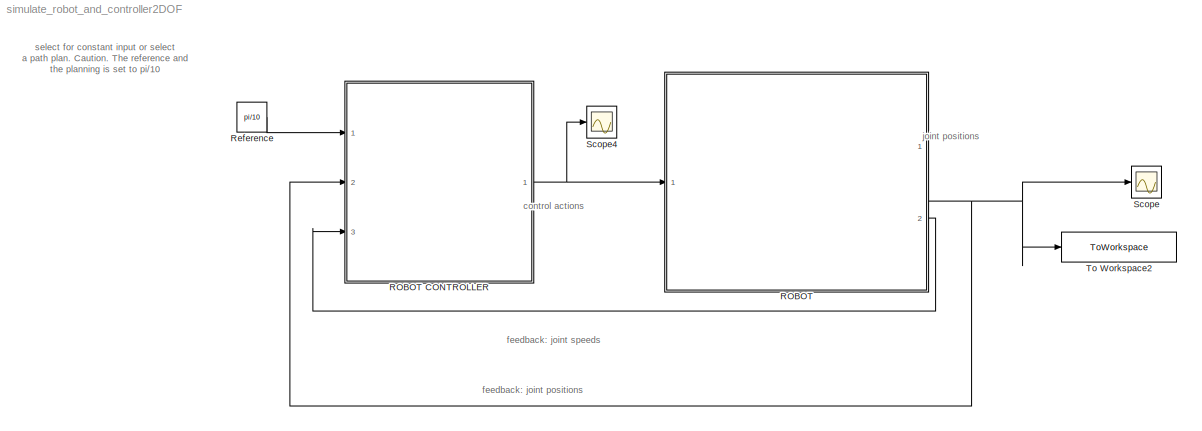
MODEL simulate_robot_and_controller2DOF
KIND model
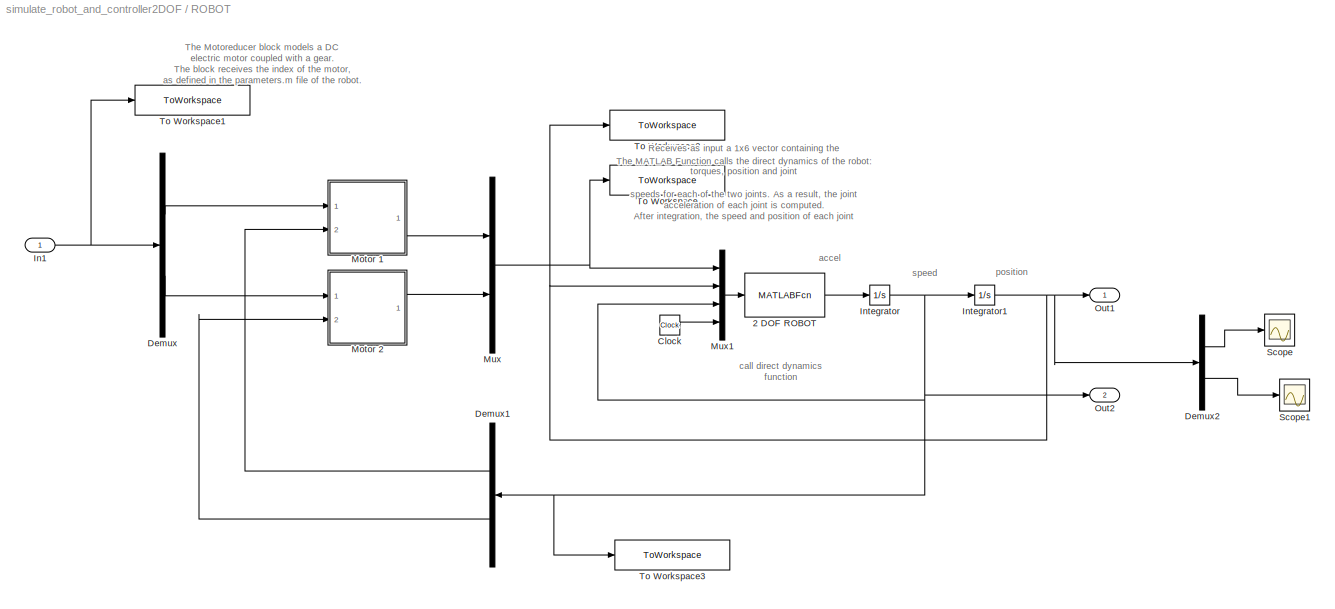
BLOCK [SubSystem] ROBOT
  Ports = [1, 2]
  RequestExecContextInheritance = off
  SID = 1
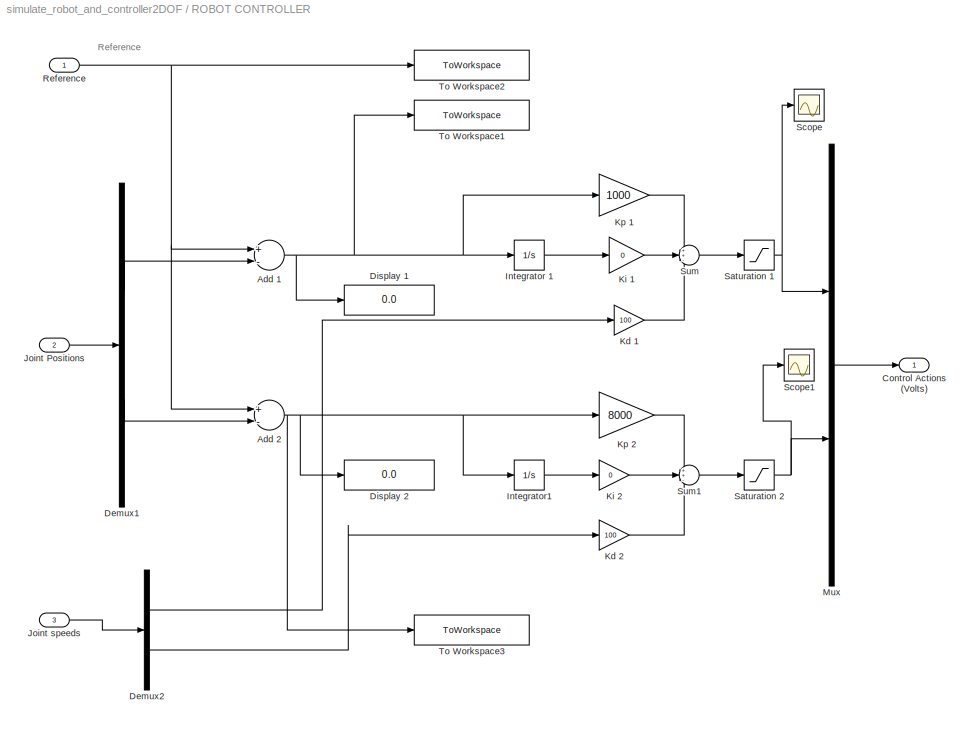
BLOCK [SubSystem] ROBOT CONTROLLER
  Description = ROBOT CONTROLLER
  Ports = [3, 1]
  RequestExecContextInheritance = off
  SID = 197
BLOCK [Sum] ROBOT CONTROLLER/Add 1
  InputSameDT = off
  Inputs = +-
  OutDataTypeStr = Inherit: Inherit via internal rule
  Ports = [2, 1]
  SID = 199
  SaturateOnIntegerOverflow = off
BLOCK [Sum] ROBOT CONTROLLER/Add 2
  InputSameDT = off
  Inputs = +-
  OutDataTypeStr = Inherit: Inherit via internal rule
  Ports = [2, 1]
  SID = 200
  SaturateOnIntegerOverflow = off
BLOCK [Outport] ROBOT CONTROLLER/Control Actions (Volts)
  IconDisplay = Port number
  SID = 210
BLOCK [Demux] ROBOT CONTROLLER/Demux1
  DisplayOption = bar
  Outputs = 2
  Ports = [1, 2]
  SID = 201
BLOCK [Demux] ROBOT CONTROLLER/Demux2
  DisplayOption = bar
  Outputs = 2
  Ports = [1, 2]
  SID = 399
BLOCK [Display] ROBOT CONTROLLER/Display 1
  Decimation = 1
  Ports = [1]
  SID = 317
BLOCK [Display] ROBOT CONTROLLER/Display 2
  Decimation = 1
  Ports = [1]
  SID = 318
BLOCK [Integrator] ROBOT CONTROLLER/Integrator 1
  Ports = [1, 1]
  SID = 292
BLOCK [Integrator] ROBOT CONTROLLER/Integrator1
  Ports = [1, 1]
  SID = 301
BLOCK [Inport] ROBOT CONTROLLER/Joint Positions
  IconDisplay = Port number
  Port = 2
  SID = 304
BLOCK [Inport] ROBOT CONTROLLER/Joint speeds
  IconDisplay = Port number
  Port = 3
  SID = 398
BLOCK [Gain] ROBOT CONTROLLER/Kd 1
  Gain = 100
  OutDataTypeStr = Inherit: Inherit via internal rule
  ParamDataTypeStr = Inherit: Inherit via internal rule
  SID = 296
  SaturateOnIntegerOverflow = off
BLOCK [Gain] ROBOT CONTROLLER/Kd 2
  Gain = 100
  OutDataTypeStr = Inherit: Inherit via internal rule
  ParamDataTypeStr = Inherit: Inherit via internal rule
  SID = 300
  SaturateOnIntegerOverflow = off
BLOCK [Gain] ROBOT CONTROLLER/Ki 1
  Gain = 0
  OutDataTypeStr = Inherit: Inherit via internal rule
  ParamDataTypeStr = Inherit: Inherit via internal rule
  SID = 295
  SaturateOnIntegerOverflow = off
BLOCK [Gain] ROBOT CONTROLLER/Ki 2
  Gain = 0
  OutDataTypeStr = Inherit: Inherit via internal rule
  ParamDataTypeStr = Inherit: Inherit via internal rule
  SID = 299
  SaturateOnIntegerOverflow = off
BLOCK [Gain] ROBOT CONTROLLER/Kp 1
  Gain = 1000
  OutDataTypeStr = Inherit: Inherit via internal rule
  ParamDataTypeStr = Inherit: Inherit via internal rule
  SID = 294
  SaturateOnIntegerOverflow = off
BLOCK [Gain] ROBOT CONTROLLER/Kp 2
  Gain = 8000
  OutDataTypeStr = Inherit: Inherit via internal rule
  ParamDataTypeStr = Inherit: Inherit via internal rule
  SID = 298
  SaturateOnIntegerOverflow = off
BLOCK [Mux] ROBOT CONTROLLER/Mux
  DisplayOption = bar
  Inputs = 2
  Ports = [2, 1]
  SID = 202
BLOCK [Inport] ROBOT CONTROLLER/Reference
  IconDisplay = Port number
  SID = 198
BLOCK [Saturate] ROBOT CONTROLLER/Saturation 1
  InputPortMap = u0
  LowerLimit = -100
  Ports = [1, 1]
  SID = 205
  UpperLimit = 100
  ZeroCross = off
BLOCK [Saturate] ROBOT CONTROLLER/Saturation 2
  InputPortMap = u0
  LowerLimit = -100
  Ports = [1, 1]
  SID = 206
  UpperLimit = 100
  ZeroCross = off
BLOCK [Scope] ROBOT CONTROLLER/Scope
  Floating = off
  NumInputPorts = 1
  Ports = [1]
  SID = 394
  ScopeSpecificationString = Simulink.scopes.TimeScopeBlockCfg('CurrentConfiguration', extmgr.ConfigurationSet(extmgr.Configuration('Core','General UI',true),extmgr.Configuration('Core','Source UI',true),extmgr.Configuration('Sources','WiredSimulink',true,'DataLogging',true,'DataLoggingSaveFormat','Array','DataLoggingDecimation','1','DataLoggingDecimateData',true,'DataLoggingVariableName','ScopeData1'),extmgr.Configuration('V...<+1764ch>
BLOCK [Scope] ROBOT CONTROLLER/Scope1
  Floating = off
  NumInputPorts = 1
  Ports = [1]
  SID = 395
  ScopeSpecificationString = Simulink.scopes.TimeScopeBlockCfg('CurrentConfiguration', extmgr.ConfigurationSet(extmgr.Configuration('Core','General UI',true),extmgr.Configuration('Core','Source UI',true),extmgr.Configuration('Sources','WiredSimulink',true,'DataLogging',true,'DataLoggingSaveFormat','Array','DataLoggingDecimation','1','DataLoggingDecimateData',true,'DataLoggingVariableName','ScopeData2'),extmgr.Configuration('V...<+1750ch>
BLOCK [Sum] ROBOT CONTROLLER/Sum
  IconShape = round
  InputSameDT = off
  Inputs = ++-
  OutDataTypeStr = Inherit: Inherit via internal rule
  Ports = [3, 1]
  SID = 291
  SaturateOnIntegerOverflow = off
BLOCK [Sum] ROBOT CONTROLLER/Sum1
  IconShape = round
  InputSameDT = off
  Inputs = ++-
  OutDataTypeStr = Inherit: Inherit via internal rule
  Ports = [3, 1]
  SID = 302
  SaturateOnIntegerOverflow = off
BLOCK [ToWorkspace] ROBOT CONTROLLER/To Workspace1
  MaxDataPoints = inf
  Ports = [1]
  SID = 386
  SampleTime = -1
  VariableName = joint1_error
BLOCK [ToWorkspace] ROBOT CONTROLLER/To Workspace2
  MaxDataPoints = inf
  Ports = [1]
  SID = 209
  SampleTime = -1
  VariableName = reference
BLOCK [ToWorkspace] ROBOT CONTROLLER/To Workspace3
  MaxDataPoints = inf
  Ports = [1]
  SID = 387
  SampleTime = -1
  VariableName = joint2_error
BLOCK [MATLABFcn] ROBOT/2 DOF ROBOT
  MATLABFcn = call_direct_dynamics_2dofplanar_s5b(u)
  OutputDimensions = 2
  Ports = [1, 1]
  SID = 3
BLOCK [Clock] ROBOT/Clock
  SID = 323
BLOCK [Demux] ROBOT/Demux
  DisplayOption = bar
  Outputs = 2
  Ports = [1, 2]
  SID = 4
BLOCK [Demux] ROBOT/Demux1
  DisplayOption = bar
  Outputs = 2
  Ports = [1, 2]
  SID = 5
BLOCK [Demux] ROBOT/Demux2
  DisplayOption = bar
  Outputs = 2
  Ports = [1, 2]
  SID = 402
BLOCK [Inport] ROBOT/In1
  IconDisplay = Port number
  SID = 2
BLOCK [Integrator] ROBOT/Integrator
  InitialCondition = [0 0 ]
  Ports = [1, 1]
  SID = 16
BLOCK [Integrator] ROBOT/Integrator1
  InitialCondition = [0 0]
  Ports = [1, 1]
  SID = 17
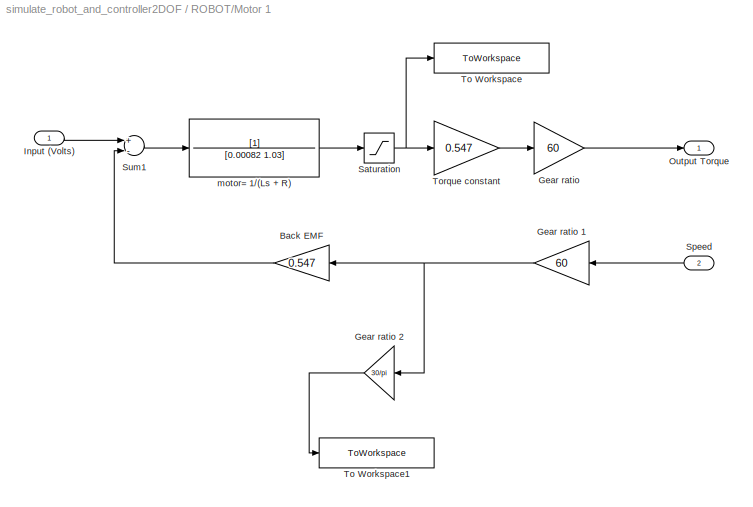
BLOCK [SubSystem] ROBOT/Motor 1
  Ports = [2, 1]
  RequestExecContextInheritance = off
  SID = 225
BLOCK [Gain] ROBOT/Motor 1/Back EMF
  Gain = 0.547
  SID = 228
BLOCK [Gain] ROBOT/Motor 1/Gear ratio
  Gain = 60
  SID = 229
BLOCK [Gain] ROBOT/Motor 1/Gear ratio 1
  Gain = 60
  SID = 230
BLOCK [Gain] ROBOT/Motor 1/Gear ratio 2
  Gain = 30/pi
  SID = 392
BLOCK [Inport] ROBOT/Motor 1/Input (Volts)
  IconDisplay = Port number
  SID = 226
BLOCK [Outport] ROBOT/Motor 1/Output Torque
  IconDisplay = Port number
  InitialOutput = 0
  SID = 236
BLOCK [Saturate] ROBOT/Motor 1/Saturation
  InputPortMap = u0
  LowerLimit = -30
  Ports = [1, 1]
  SID = 231
  UpperLimit = 30
  ZeroCross = off
BLOCK [Inport] ROBOT/Motor 1/Speed
  IconDisplay = Port number
  Port = 2
  SID = 227
BLOCK [Sum] ROBOT/Motor 1/Sum1
  Inputs = +-
  Ports = [2, 1]
  SID = 233
BLOCK [ToWorkspace] ROBOT/Motor 1/To Workspace
  MaxDataPoints = inf
  Ports = [1]
  SID = 388
  SampleTime = -1
  VariableName = motor1_current
BLOCK [ToWorkspace] ROBOT/Motor 1/To Workspace1
  MaxDataPoints = inf
  Ports = [1]
  SID = 393
  SampleTime = -1
  VariableName = motor1_speed_rpm
BLOCK [Gain] ROBOT/Motor 1/Torque constant
  Gain = 0.547
  SID = 234
BLOCK [TransferFcn] ROBOT/Motor 1/motor= 1//(Ls + R)
  Denominator = [0.00082 1.03]
  SID = 235
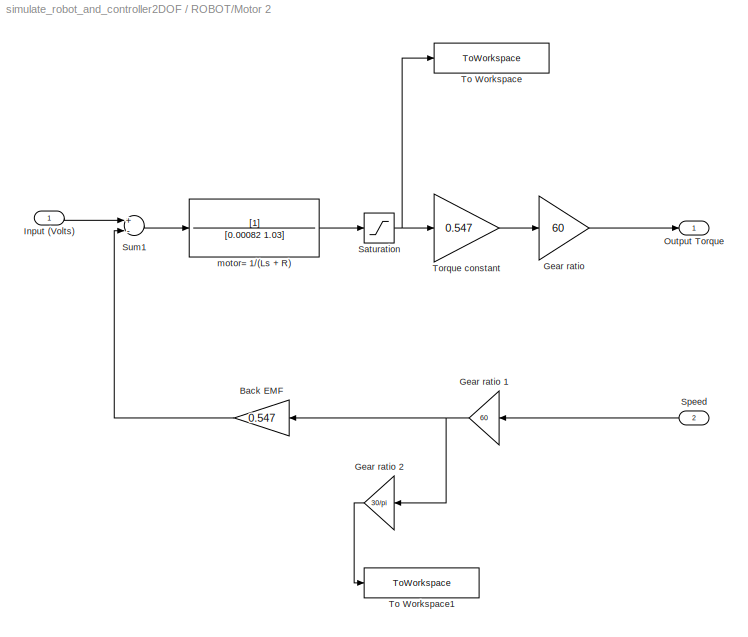
BLOCK [SubSystem] ROBOT/Motor 2
  Ports = [2, 1]
  RequestExecContextInheritance = off
  SID = 278
BLOCK [Gain] ROBOT/Motor 2/Back EMF
  Gain = 0.547
  SID = 281
BLOCK [Gain] ROBOT/Motor 2/Gear ratio
  Gain = 60
  SID = 282
BLOCK [Gain] ROBOT/Motor 2/Gear ratio 1
  Gain = 60
  SID = 283
BLOCK [Gain] ROBOT/Motor 2/Gear ratio 2
  Gain = 30/pi
  SID = 391
BLOCK [Inport] ROBOT/Motor 2/Input (Volts)
  IconDisplay = Port number
  SID = 279
BLOCK [Outport] ROBOT/Motor 2/Output Torque
  IconDisplay = Port number
  InitialOutput = 0
  SID = 288
BLOCK [Saturate] ROBOT/Motor 2/Saturation
  InputPortMap = u0
  LowerLimit = -30
  Ports = [1, 1]
  SID = 284
  UpperLimit = 30
  ZeroCross = off
BLOCK [Inport] ROBOT/Motor 2/Speed
  IconDisplay = Port number
  Port = 2
  SID = 280
BLOCK [Sum] ROBOT/Motor 2/Sum1
  Inputs = +-
  Ports = [2, 1]
  SID = 285
BLOCK [ToWorkspace] ROBOT/Motor 2/To Workspace
  MaxDataPoints = inf
  Ports = [1]
  SID = 389
  SampleTime = -1
  VariableName = motor2_current
BLOCK [ToWorkspace] ROBOT/Motor 2/To Workspace1
  MaxDataPoints = inf
  Ports = [1]
  SID = 390
  SampleTime = -1
  VariableName = motor2_speed_rpm
BLOCK [Gain] ROBOT/Motor 2/Torque constant
  Gain = 0.547
  SID = 286
BLOCK [TransferFcn] ROBOT/Motor 2/motor= 1//(Ls + R)
  Denominator = [0.00082 1.03]
  SID = 287
BLOCK [Mux] ROBOT/Mux
  DisplayOption = bar
  Inputs = 2
  Ports = [2, 1]
  SID = 84
BLOCK [Mux] ROBOT/Mux1
  DisplayOption = bar
  Ports = [4, 1]
  SID = 85
BLOCK [Outport] ROBOT/Out1
  IconDisplay = Port number
  SID = 89
BLOCK [Outport] ROBOT/Out2
  IconDisplay = Port number
  Port = 2
  SID = 397
BLOCK [Scope] ROBOT/Scope
  Floating = off
  NumInputPorts = 1
  Ports = [1]
  SID = 401
  ScopeSpecificationString = Simulink.scopes.TimeScopeBlockCfg('CurrentConfiguration', extmgr.ConfigurationSet(extmgr.Configuration('Core','General UI',true),extmgr.Configuration('Core','Source UI',true),extmgr.Configuration('Sources','WiredSimulink',true,'DataLogging',true,'DataLoggingSaveFormat','Array','DataLoggingDecimation','1','DataLoggingDecimateData',true,'DataLoggingVariableName','ScopeData3'),extmgr.Configuration('V...<+1745ch>
BLOCK [Scope] ROBOT/Scope1
  Floating = off
  NumInputPorts = 1
  Ports = [1]
  SID = 403
  ScopeSpecificationString = Simulink.scopes.TimeScopeBlockCfg('CurrentConfiguration', extmgr.ConfigurationSet(extmgr.Configuration('Core','General UI',true),extmgr.Configuration('Core','Source UI',true),extmgr.Configuration('Sources','WiredSimulink',true,'DataLogging',true,'DataLoggingSaveFormat','Array','DataLoggingDecimation','1','DataLoggingDecimateData',true,'DataLoggingVariableName','ScopeData4'),extmgr.Configuration('V...<+1758ch>
BLOCK [ToWorkspace] ROBOT/To Workspace
  MaxDataPoints = inf
  Ports = [1]
  SID = 86
  SampleTime = -1
  VariableName = joint_torques
BLOCK [ToWorkspace] ROBOT/To Workspace1
  MaxDataPoints = inf
  Ports = [1]
  SID = 87
  SampleTime = -1
  VariableName = control_actions
BLOCK [ToWorkspace] ROBOT/To Workspace2
  MaxDataPoints = inf
  Ports = [1]
  SID = 88
  SampleTime = -1
  VariableName = joint_positions
BLOCK [ToWorkspace] ROBOT/To Workspace3
  MaxDataPoints = inf
  Ports = [1]
  SID = 385
  SampleTime = -1
  VariableName = joint_speeds
BLOCK [Constant] Reference
  SID = 306
  Value = pi/10
BLOCK [Scope] Scope
  Floating = off
  NumInputPorts = 1
  Ports = [1]
  SID = 169
  ScopeSpecificationString = Simulink.scopes.TimeScopeBlockCfg('CurrentConfiguration', extmgr.ConfigurationSet(extmgr.Configuration('Core','General UI',true),extmgr.Configuration('Core','Source UI',true),extmgr.Configuration('Sources','WiredSimulink',true,'DataLogging',true,'DataLoggingSaveFormat','Array','DataLoggingDecimation','1','DataLoggingDecimateData',true),extmgr.Configuration('Visuals','Time Domain',true,'SerializedD...<+1745ch>
BLOCK [Scope] Scope4
  Floating = off
  NumInputPorts = 1
  Ports = [1]
  SID = 170
  ScopeSpecificationString = C++SS(StrPVP('Location','[62, 145, 1275, 638]'),StrPVP('Open','off'),StrPVP('ZoomMode','yonly'),MxPVP('AxesTitles',53,'struct(''axes1'',''%<SignalLabel>'')'),StrPVP('YMin','-2.5'),StrPVP('YMax','50'),StrPVP('SaveName','ScopeData4'),StrPVP('DataFormat','StructureWithTime'),StrPVP('LimitDataPoints','off'),StrPVP('BlockParamSampleTime','0'),StrPVP('Decimation','1'),StrPVP('BlockParamSampleInput','off...<+3ch>
BLOCK [ToWorkspace] To Workspace2
  MaxDataPoints = inf
  Ports = [1]
  SID = 337
  SampleTime = -1
  VariableName = control_results
ANNOTATION (root): control actions
ANNOTATION (root): feedback: joint positions
ANNOTATION (root): feedback: joint speeds
ANNOTATION (root): joint positions
ANNOTATION (root): select for constant input or select\na path plan. Caution. The reference and\nthe planning is set to pi/10\n
ANNOTATION ROBOT: The MATLAB Function calls the direct dynamics of the robot: \nReceives as input a 1x6 vector containing the \ntorques, position and joint\nspeeds for each of the two joints. As a result, the joint \nacceleration of each joint is computed. \nAfter integration, the speed and position of each joint \nis computed and sent back to the controller
ANNOTATION ROBOT: The Motoreducer block models a DC \nelectric motor coupled with a gear. \nThe block receives the index of the motor, \nas defined in the parameters.m file of the robot.
ANNOTATION ROBOT: accel
ANNOTATION ROBOT: call direct dynamics\n function
ANNOTATION ROBOT: position
ANNOTATION ROBOT: speed
ANNOTATION ROBOT CONTROLLER: Reference
NET ROBOT CONTROLLER/Add 1:1 -> ROBOT CONTROLLER/Display 1:1, ROBOT CONTROLLER/Integrator 1:1, ROBOT CONTROLLER/Kp 1:1, ROBOT CONTROLLER/To Workspace1:1
NET ROBOT CONTROLLER/Add 2:1 -> ROBOT CONTROLLER/Display 2:1, ROBOT CONTROLLER/Integrator1:1, ROBOT CONTROLLER/Kp 2:1, ROBOT CONTROLLER/To Workspace3:1
LINE ROBOT CONTROLLER/Demux1:1 -> ROBOT CONTROLLER/Add 1:2
LINE ROBOT CONTROLLER/Demux1:2 -> ROBOT CONTROLLER/Add 2:2
LINE ROBOT CONTROLLER/Demux2:1 -> ROBOT CONTROLLER/Kd 1:1
LINE ROBOT CONTROLLER/Demux2:2 -> ROBOT CONTROLLER/Kd 2:1
LINE ROBOT CONTROLLER/Integrator 1:1 -> ROBOT CONTROLLER/Ki 1:1
LINE ROBOT CONTROLLER/Integrator1:1 -> ROBOT CONTROLLER/Ki 2:1
LINE ROBOT CONTROLLER/Joint Positions:1 -> ROBOT CONTROLLER/Demux1:1
LINE ROBOT CONTROLLER/Joint speeds:1 -> ROBOT CONTROLLER/Demux2:1
LINE ROBOT CONTROLLER/Kd 1:1 -> ROBOT CONTROLLER/Sum:3
LINE ROBOT CONTROLLER/Kd 2:1 -> ROBOT CONTROLLER/Sum1:3
LINE ROBOT CONTROLLER/Ki 1:1 -> ROBOT CONTROLLER/Sum:2
LINE ROBOT CONTROLLER/Ki 2:1 -> ROBOT CONTROLLER/Sum1:2
LINE ROBOT CONTROLLER/Kp 1:1 -> ROBOT CONTROLLER/Sum:1
LINE ROBOT CONTROLLER/Kp 2:1 -> ROBOT CONTROLLER/Sum1:1
LINE ROBOT CONTROLLER/Mux:1 -> ROBOT CONTROLLER/Control Actions (Volts):1
NET ROBOT CONTROLLER/Reference:1 -> ROBOT CONTROLLER/Add 1:1, ROBOT CONTROLLER/Add 2:1, ROBOT CONTROLLER/To Workspace2:1
NET ROBOT CONTROLLER/Saturation 1:1 -> ROBOT CONTROLLER/Mux:1, ROBOT CONTROLLER/Scope:1
NET ROBOT CONTROLLER/Saturation 2:1 -> ROBOT CONTROLLER/Mux:2, ROBOT CONTROLLER/Scope1:1
LINE ROBOT CONTROLLER/Sum1:1 -> ROBOT CONTROLLER/Saturation 2:1
LINE ROBOT CONTROLLER/Sum:1 -> ROBOT CONTROLLER/Saturation 1:1
NET ROBOT CONTROLLER:1 -> ROBOT:1, Scope4:1
LINE ROBOT/2 DOF ROBOT:1 -> ROBOT/Integrator:1
LINE ROBOT/Clock:1 -> ROBOT/Mux1:4
LINE ROBOT/Demux1:1 -> ROBOT/Motor 1:2
LINE ROBOT/Demux1:2 -> ROBOT/Motor 2:2
LINE ROBOT/Demux2:1 -> ROBOT/Scope:1
LINE ROBOT/Demux2:2 -> ROBOT/Scope1:1
LINE ROBOT/Demux:1 -> ROBOT/Motor 1:1
LINE ROBOT/Demux:2 -> ROBOT/Motor 2:1
NET ROBOT/In1:1 -> ROBOT/Demux:1, ROBOT/To Workspace1:1
NET ROBOT/Integrator1:1 -> ROBOT/Demux2:1, ROBOT/Mux1:2, ROBOT/Out1:1, ROBOT/To Workspace2:1
NET ROBOT/Integrator:1 -> ROBOT/Demux1:1, ROBOT/Integrator1:1, ROBOT/Mux1:3, ROBOT/Out2:1, ROBOT/To Workspace3:1
LINE ROBOT/Motor 1/Back EMF:1 -> ROBOT/Motor 1/Sum1:2
NET ROBOT/Motor 1/Gear ratio 1:1 -> ROBOT/Motor 1/Back EMF:1, ROBOT/Motor 1/Gear ratio 2:1
LINE ROBOT/Motor 1/Gear ratio 2:1 -> ROBOT/Motor 1/To Workspace1:1
LINE ROBOT/Motor 1/Gear ratio:1 -> ROBOT/Motor 1/Output Torque:1
LINE ROBOT/Motor 1/Input (Volts):1 -> ROBOT/Motor 1/Sum1:1
NET ROBOT/Motor 1/Saturation:1 -> ROBOT/Motor 1/To Workspace:1, ROBOT/Motor 1/Torque constant:1
LINE ROBOT/Motor 1/Speed:1 -> ROBOT/Motor 1/Gear ratio 1:1
LINE ROBOT/Motor 1/Sum1:1 -> ROBOT/Motor 1/motor= 1//(Ls + R):1
LINE ROBOT/Motor 1/Torque constant:1 -> ROBOT/Motor 1/Gear ratio:1
LINE ROBOT/Motor 1/motor= 1//(Ls + R):1 -> ROBOT/Motor 1/Saturation:1
LINE ROBOT/Motor 1:1 -> ROBOT/Mux:1
LINE ROBOT/Motor 2/Back EMF:1 -> ROBOT/Motor 2/Sum1:2
NET ROBOT/Motor 2/Gear ratio 1:1 -> ROBOT/Motor 2/Back EMF:1, ROBOT/Motor 2/Gear ratio 2:1
LINE ROBOT/Motor 2/Gear ratio 2:1 -> ROBOT/Motor 2/To Workspace1:1
LINE ROBOT/Motor 2/Gear ratio:1 -> ROBOT/Motor 2/Output Torque:1
LINE ROBOT/Motor 2/Input (Volts):1 -> ROBOT/Motor 2/Sum1:1
NET ROBOT/Motor 2/Saturation:1 -> ROBOT/Motor 2/To Workspace:1, ROBOT/Motor 2/Torque constant:1
LINE ROBOT/Motor 2/Speed:1 -> ROBOT/Motor 2/Gear ratio 1:1
LINE ROBOT/Motor 2/Sum1:1 -> ROBOT/Motor 2/motor= 1//(Ls + R):1
LINE ROBOT/Motor 2/Torque constant:1 -> ROBOT/Motor 2/Gear ratio:1
LINE ROBOT/Motor 2/motor= 1//(Ls + R):1 -> ROBOT/Motor 2/Saturation:1
LINE ROBOT/Motor 2:1 -> ROBOT/Mux:2
LINE ROBOT/Mux1:1 -> ROBOT/2 DOF ROBOT:1
NET ROBOT/Mux:1 -> ROBOT/Mux1:1, ROBOT/To Workspace:1
NET ROBOT:1 -> ROBOT CONTROLLER:2, Scope:1, To Workspace2:1
LINE ROBOT:2 -> ROBOT CONTROLLER:3
LINE Reference:1 -> ROBOT CONTROLLER:1
note: NET lines group one-source signal fan-out (src -> all destinations, sorted); 1:1 wires keep LINE
